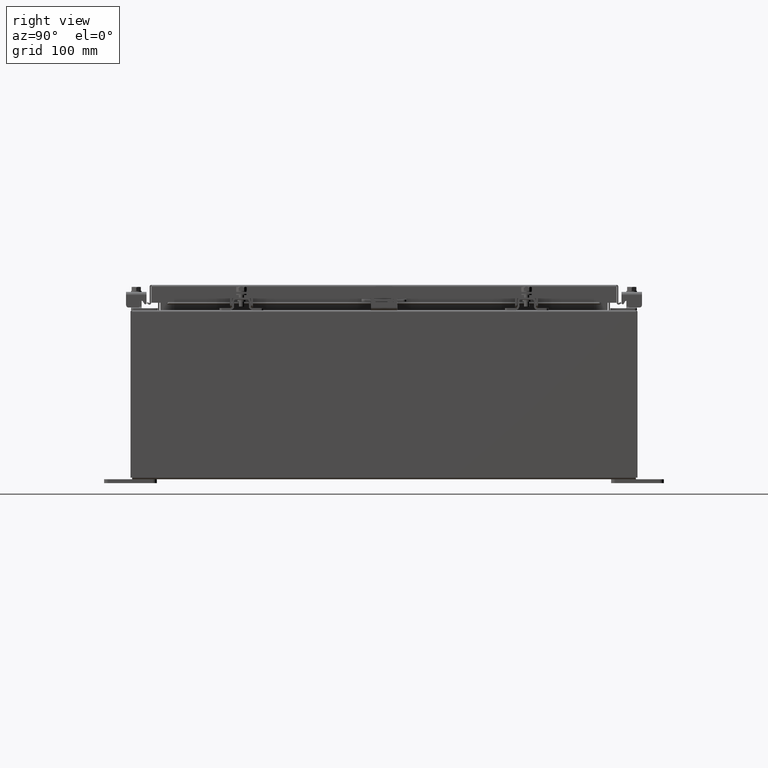
[diagram: clean part render]
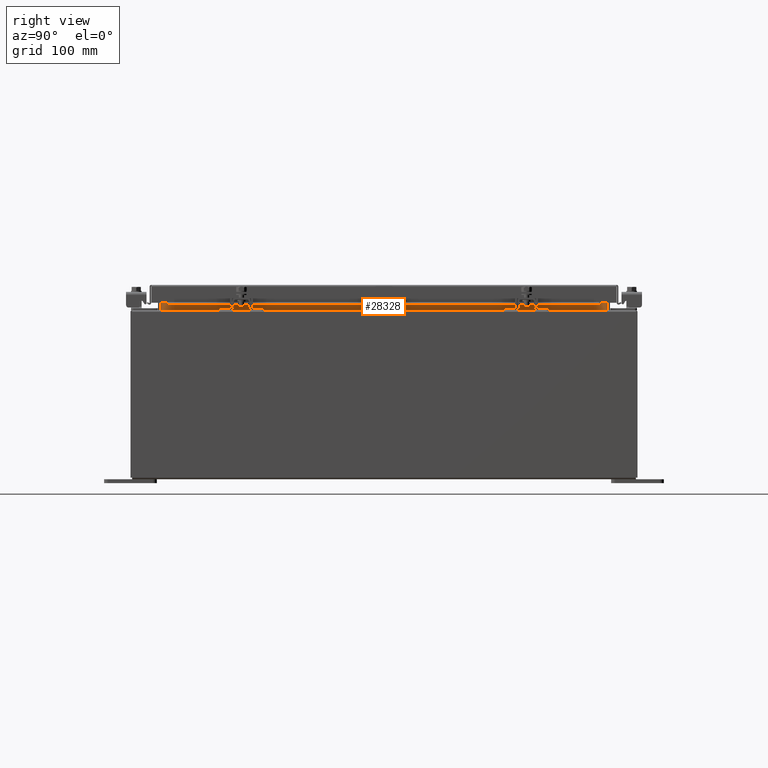
[diagram: same view with one face highlighted and labeled with its STEP entity id]
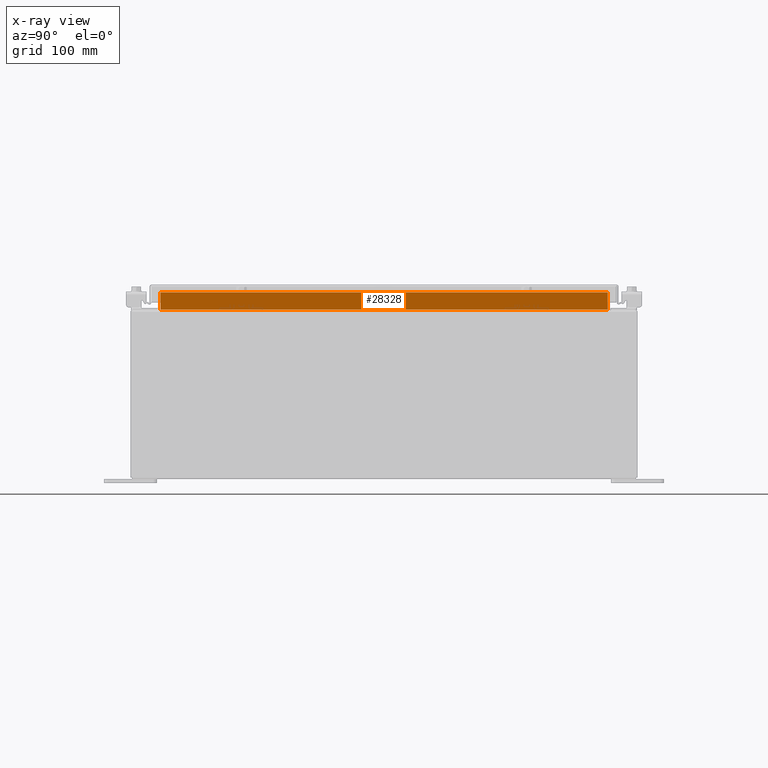
[diagram: x-ray of the same camera — body ghosted, the highlighted face saturated]
A machine part, right view. The second image highlights one B-rep face of the part: STEP entity #28328.
The next image is the same camera in x-ray: the body ghosted, the highlighted face saturated — about 0% of this face is hidden behind the body in this view.
In plain terms, the highlighted planar face has unit normal (1, 0, -0).
Its self-contained STEP definition (entity closure, byte-faithful):
#99 = CARTESIAN_POINT ( 'NONE',  ( 8.699700000000033700, 10.59374999999999600, 8.762900000000007200 ) ) ;
#623 = ORIENTED_EDGE ( 'NONE', *, *, #23878, .F. ) ;
#704 = DIRECTION ( 'NONE',  ( -2.361913319930196000E-015, 0.0000000000000000000, -1.000000000000000000 ) ) ;
#1250 = DIRECTION ( 'NONE',  ( 2.361913319930198800E-015, -0.0000000000000000000, 1.000000000000000000 ) ) ;
#2112 = CARTESIAN_POINT ( 'NONE',  ( 8.699700000000030200, -10.59375000000000000, 8.850600000000007100 ) ) ;
#2141 = EDGE_CURVE ( 'NONE', #3803, #15328, #20502, .T. ) ;
#2208 = AXIS2_PLACEMENT_3D ( 'NONE', #15718, #27738, #704 ) ;
#2391 = VECTOR ( 'NONE', #19846, 39.37007874015748100 ) ;
#2722 = CARTESIAN_POINT ( 'NONE',  ( 8.699700000000028400, -10.59374999999999800, 7.938300000000009700 ) ) ;
#3803 = VERTEX_POINT ( 'NONE', #2722 ) ;
#4181 = ORIENTED_EDGE ( 'NONE', *, *, #9325, .F. ) ;
#6617 = VECTOR ( 'NONE', #1250, 39.37007874015748100 ) ;
#9325 = EDGE_CURVE ( 'NONE', #15328, #13272, #29352, .T. ) ;
#9472 = CARTESIAN_POINT ( 'NONE',  ( 8.699700000000028400, 10.59374999999999600, 7.938300000000007900 ) ) ;
#9727 = EDGE_CURVE ( 'NONE', #13272, #21705, #27839, .T. ) ;
#11844 = DIRECTION ( 'NONE',  ( 0.0000000000000000000, 1.000000000000000000, 0.0000000000000000000 ) ) ;
#13017 = FACE_OUTER_BOUND ( 'NONE', #20063, .T. ) ;
#13272 = VERTEX_POINT ( 'NONE', #99 ) ;
#14561 = LINE ( 'NONE', #9472, #2391 ) ;
#15328 = VERTEX_POINT ( 'NONE', #27307 ) ;
#15718 = CARTESIAN_POINT ( 'NONE',  ( 8.699700000000010600, 0.0000000000000000000, -2.054793730939675100E-014 ) ) ;
#18392 = CARTESIAN_POINT ( 'NONE',  ( 8.699700000000028400, 10.59374999999999600, 7.938300000000009700 ) ) ;
#19846 = DIRECTION ( 'NONE',  ( 5.157471138481205900E-017, -1.000000000000000000, 1.547241341544361900E-016 ) ) ;
#20063 = EDGE_LOOP ( 'NONE', ( #27619, #4181, #28258, #623 ) ) ;
#20502 = LINE ( 'NONE', #2112, #6617 ) ;
#21705 = VERTEX_POINT ( 'NONE', #18392 ) ;
#22083 = PLANE ( 'NONE',  #2208 ) ;
#23878 = EDGE_CURVE ( 'NONE', #21705, #3803, #14561, .T. ) ;
#24083 = VECTOR ( 'NONE', #11844, 39.37007874015748100 ) ;
#27307 = CARTESIAN_POINT ( 'NONE',  ( 8.699700000000030200, -10.59375000000000000, 8.762900000000007200 ) ) ;
#27314 = VECTOR ( 'NONE', #28615, 39.37007874015748100 ) ;
#27619 = ORIENTED_EDGE ( 'NONE', *, *, #9727, .F. ) ;
#27738 = DIRECTION ( 'NONE',  ( 1.000000000000000000, 0.0000000000000000000, -2.361913319930196000E-015 ) ) ;
#27839 = LINE ( 'NONE', #29086, #27314 ) ;
#28198 = CARTESIAN_POINT ( 'NONE',  ( 8.699700000000033700, -10.59375000000000000, 8.762900000000007200 ) ) ;
#28258 = ORIENTED_EDGE ( 'NONE', *, *, #2141, .F. ) ;
#28328 = ADVANCED_FACE ( 'NONE', ( #13017 ), #22083, .T. ) ;
#28615 = DIRECTION ( 'NONE',  ( -2.361913319930196000E-015, -0.0000000000000000000, -1.000000000000000000 ) ) ;
#29086 = CARTESIAN_POINT ( 'NONE',  ( 8.699700000000028400, 10.59374999999999600, 7.925300000000007100 ) ) ;
#29352 = LINE ( 'NONE', #28198, #24083 ) ;